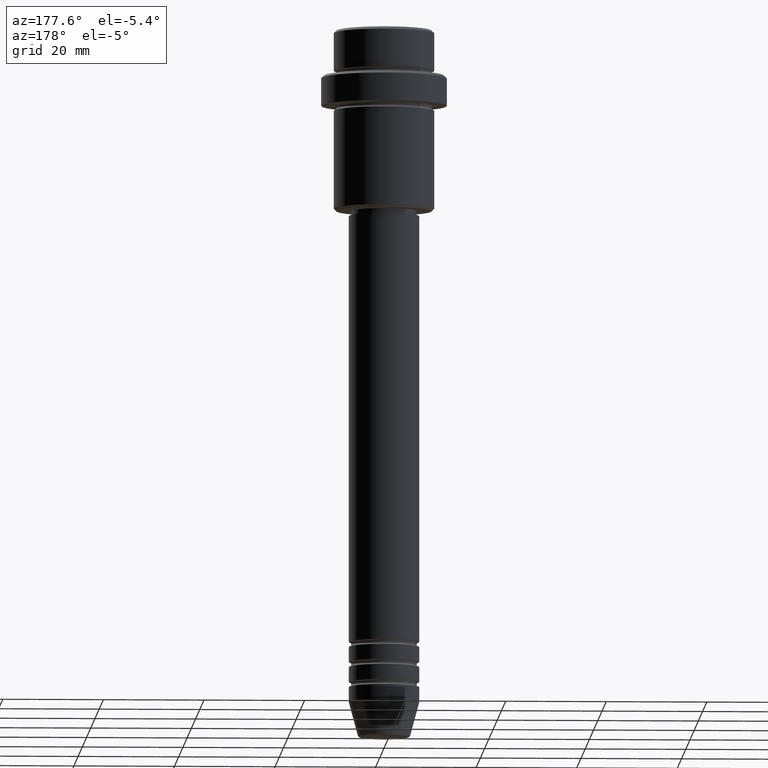
[diagram: clean part render]
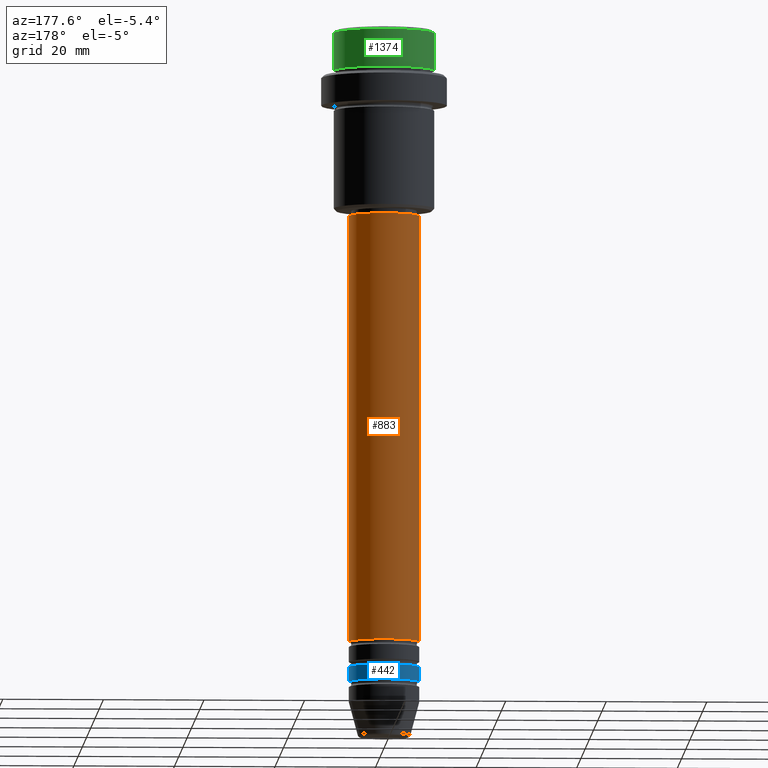
[diagram: same view with three faces highlighted in distinct colors, each labeled with its STEP entity id]
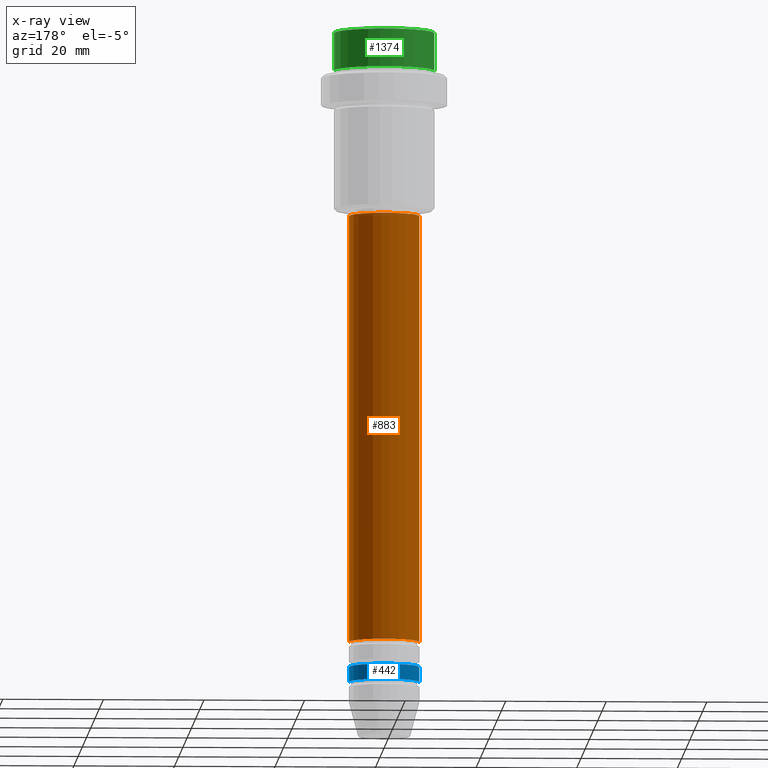
[diagram: x-ray of the same camera — body ghosted, the three highlighted faces saturated]
A machine part, auxiliary view with three faces highlighted in distinct colors.
The next image is the same camera in x-ray (body ghosted, the three faces saturated) — at least one of them is partly hidden behind the body in this view.
Their STEP definitions:

[orange] entity #883 — the highlighted cylindrical surface (edge-blend (fillet) strip) has radius 7 mm, axis along (-0, -0, 1).
#2 = EDGE_CURVE ( 'NONE', #60, #55, #785, .T. ) ;
#7 = LINE ( 'NONE', #463, #515 ) ;
#55 = VERTEX_POINT ( 'NONE', #577 ) ;
#60 = VERTEX_POINT ( 'NONE', #1329 ) ;
#155 = DIRECTION ( 'NONE',  ( -0.000000000000000000, -0.000000000000000000, 1.000000000000000000 ) ) ;
#161 = CARTESIAN_POINT ( 'NONE',  ( 7.000000000000000000, 0.000000000000000000, 0.000000000000000000 ) ) ;
#188 = EDGE_CURVE ( 'NONE', #872, #55, #7, .T. ) ;
#194 = ORIENTED_EDGE ( 'NONE', *, *, #265, .T. ) ;
#239 = EDGE_CURVE ( 'NONE', #306, #60, #486, .T. ) ;
#265 = EDGE_CURVE ( 'NONE', #306, #872, #453, .T. ) ;
#284 = EDGE_LOOP ( 'NONE', ( #194, #596, #1018, #1379 ) ) ;
#286 = DIRECTION ( 'NONE',  ( -0.000000000000000000, -0.000000000000000000, 1.000000000000000000 ) ) ;
#306 = VERTEX_POINT ( 'NONE', #811 ) ;
#386 = AXIS2_PLACEMENT_3D ( 'NONE', #687, #489, #607 ) ;
#453 = CIRCLE ( 'NONE', #540, 7.000000000000000000 ) ;
#463 = CARTESIAN_POINT ( 'NONE',  ( -7.000000000000000000, 8.572527594031473190E-16, 0.000000000000000000 ) ) ;
#486 = LINE ( 'NONE', #161, #676 ) ;
#489 = DIRECTION ( 'NONE',  ( -0.000000000000000000, -0.000000000000000000, 1.000000000000000000 ) ) ;
#502 = CARTESIAN_POINT ( 'NONE',  ( 0.000000000000000000, 0.000000000000000000, -121.9999999999998721 ) ) ;
#515 = VECTOR ( 'NONE', #1324, 1000.000000000000000 ) ;
#538 = AXIS2_PLACEMENT_3D ( 'NONE', #865, #1300, #758 ) ;
#540 = AXIS2_PLACEMENT_3D ( 'NONE', #502, #286, #936 ) ;
#564 = CARTESIAN_POINT ( 'NONE',  ( -7.000000000000000000, 8.572527594031473190E-16, -121.9999999999998721 ) ) ;
#577 = CARTESIAN_POINT ( 'NONE',  ( -7.000000000000000000, 8.572527594031473190E-16, -36.99999999999999289 ) ) ;
#596 = ORIENTED_EDGE ( 'NONE', *, *, #188, .T. ) ;
#607 = DIRECTION ( 'NONE',  ( 1.000000000000000000, 0.000000000000000000, 0.000000000000000000 ) ) ;
#676 = VECTOR ( 'NONE', #155, 1000.000000000000000 ) ;
#687 = CARTESIAN_POINT ( 'NONE',  ( 0.000000000000000000, 0.000000000000000000, 0.000000000000000000 ) ) ;
#758 = DIRECTION ( 'NONE',  ( 1.000000000000000000, 0.000000000000000000, 0.000000000000000000 ) ) ;
#785 = CIRCLE ( 'NONE', #538, 7.000000000000000000 ) ;
#811 = CARTESIAN_POINT ( 'NONE',  ( 7.000000000000000000, 0.000000000000000000, -121.9999999999998721 ) ) ;
#865 = CARTESIAN_POINT ( 'NONE',  ( 0.000000000000000000, 0.000000000000000000, -36.99999999999999289 ) ) ;
#872 = VERTEX_POINT ( 'NONE', #564 ) ;
#883 = ADVANCED_FACE ( 'NONE', ( #1213 ), #1021, .T. ) ;
#936 = DIRECTION ( 'NONE',  ( 1.000000000000000000, 0.000000000000000000, 0.000000000000000000 ) ) ;
#1018 = ORIENTED_EDGE ( 'NONE', *, *, #2, .F. ) ;
#1021 = CYLINDRICAL_SURFACE ( 'NONE', #386, 7.000000000000000000 ) ;
#1213 = FACE_OUTER_BOUND ( 'NONE', #284, .T. ) ;
#1300 = DIRECTION ( 'NONE',  ( -0.000000000000000000, -0.000000000000000000, 1.000000000000000000 ) ) ;
#1324 = DIRECTION ( 'NONE',  ( -0.000000000000000000, -0.000000000000000000, 1.000000000000000000 ) ) ;
#1329 = CARTESIAN_POINT ( 'NONE',  ( 7.000000000000000000, 0.000000000000000000, -36.99999999999999289 ) ) ;
#1379 = ORIENTED_EDGE ( 'NONE', *, *, #239, .F. ) ;

[blue] entity #442 — the highlighted cylindrical surface (edge-blend (fillet) strip) has radius 7 mm, axis along (-0, -0, 1).
#49 = CARTESIAN_POINT ( 'NONE',  ( 0.000000000000000000, 0.000000000000000000, -129.9999999999998579 ) ) ;
#80 = VECTOR ( 'NONE', #1137, 1000.000000000000000 ) ;
#184 = ORIENTED_EDGE ( 'NONE', *, *, #784, .T. ) ;
#185 = CYLINDRICAL_SURFACE ( 'NONE', #1356, 7.000000000000000000 ) ;
#193 = DIRECTION ( 'NONE',  ( -0.000000000000000000, -0.000000000000000000, 1.000000000000000000 ) ) ;
#221 = ORIENTED_EDGE ( 'NONE', *, *, #666, .F. ) ;
#258 = EDGE_CURVE ( 'NONE', #806, #278, #718, .T. ) ;
#278 = VERTEX_POINT ( 'NONE', #616 ) ;
#302 = DIRECTION ( 'NONE',  ( -0.000000000000000000, -0.000000000000000000, 1.000000000000000000 ) ) ;
#321 = ORIENTED_EDGE ( 'NONE', *, *, #258, .T. ) ;
#322 = VECTOR ( 'NONE', #302, 1000.000000000000000 ) ;
#360 = EDGE_CURVE ( 'NONE', #851, #619, #765, .T. ) ;
#419 = DIRECTION ( 'NONE',  ( 1.000000000000000000, 0.000000000000000000, 0.000000000000000000 ) ) ;
#442 = ADVANCED_FACE ( 'NONE', ( #641 ), #185, .T. ) ;
#485 = LINE ( 'NONE', #935, #80 ) ;
#505 = LINE ( 'NONE', #942, #322 ) ;
#523 = DIRECTION ( 'NONE',  ( 1.000000000000000000, 0.000000000000000000, 0.000000000000000000 ) ) ;
#526 = EDGE_LOOP ( 'NONE', ( #321, #184, #708, #221 ) ) ;
#616 = CARTESIAN_POINT ( 'NONE',  ( -7.000000000000000000, 8.572527594031473190E-16, -129.9999999999998579 ) ) ;
#619 = VERTEX_POINT ( 'NONE', #891 ) ;
#641 = FACE_OUTER_BOUND ( 'NONE', #526, .T. ) ;
#666 = EDGE_CURVE ( 'NONE', #806, #851, #485, .T. ) ;
#708 = ORIENTED_EDGE ( 'NONE', *, *, #360, .F. ) ;
#712 = DIRECTION ( 'NONE',  ( -0.000000000000000000, -0.000000000000000000, 1.000000000000000000 ) ) ;
#717 = DIRECTION ( 'NONE',  ( 1.000000000000000000, 0.000000000000000000, 0.000000000000000000 ) ) ;
#718 = CIRCLE ( 'NONE', #1199, 7.000000000000000000 ) ;
#765 = CIRCLE ( 'NONE', #1397, 7.000000000000000000 ) ;
#784 = EDGE_CURVE ( 'NONE', #278, #619, #505, .T. ) ;
#806 = VERTEX_POINT ( 'NONE', #1098 ) ;
#851 = VERTEX_POINT ( 'NONE', #881 ) ;
#864 = CARTESIAN_POINT ( 'NONE',  ( 0.000000000000000000, 0.000000000000000000, -126.9999999999998579 ) ) ;
#881 = CARTESIAN_POINT ( 'NONE',  ( 7.000000000000000000, 0.000000000000000000, -126.9999999999998579 ) ) ;
#891 = CARTESIAN_POINT ( 'NONE',  ( -7.000000000000000000, 8.572527594031473190E-16, -126.9999999999998579 ) ) ;
#935 = CARTESIAN_POINT ( 'NONE',  ( 7.000000000000000000, 0.000000000000000000, 0.000000000000000000 ) ) ;
#942 = CARTESIAN_POINT ( 'NONE',  ( -7.000000000000000000, 8.572527594031473190E-16, 0.000000000000000000 ) ) ;
#949 = DIRECTION ( 'NONE',  ( -0.000000000000000000, -0.000000000000000000, 1.000000000000000000 ) ) ;
#1098 = CARTESIAN_POINT ( 'NONE',  ( 7.000000000000000000, 0.000000000000000000, -129.9999999999998579 ) ) ;
#1137 = DIRECTION ( 'NONE',  ( -0.000000000000000000, -0.000000000000000000, 1.000000000000000000 ) ) ;
#1199 = AXIS2_PLACEMENT_3D ( 'NONE', #49, #712, #717 ) ;
#1356 = AXIS2_PLACEMENT_3D ( 'NONE', #1380, #193, #419 ) ;
#1380 = CARTESIAN_POINT ( 'NONE',  ( 0.000000000000000000, 0.000000000000000000, 0.000000000000000000 ) ) ;
#1397 = AXIS2_PLACEMENT_3D ( 'NONE', #864, #949, #523 ) ;

[green] entity #1374 — the highlighted cylindrical surface (partial cylindrical patch) has radius 10 mm, axis along (-0, -0, 1).
#26 = VERTEX_POINT ( 'NONE', #1305 ) ;
#67 = EDGE_CURVE ( 'NONE', #26, #639, #137, .T. ) ;
#89 = DIRECTION ( 'NONE',  ( 0.000000000000000000, 0.000000000000000000, -1.000000000000000000 ) ) ;
#107 = VECTOR ( 'NONE', #264, 1000.000000000000000 ) ;
#137 = LINE ( 'NONE', #1321, #148 ) ;
#138 = CYLINDRICAL_SURFACE ( 'NONE', #681, 9.999999999999998224 ) ;
#148 = VECTOR ( 'NONE', #782, 1000.000000000000000 ) ;
#176 = CIRCLE ( 'NONE', #431, 9.999999999999998224 ) ;
#177 = LINE ( 'NONE', #615, #107 ) ;
#187 = ORIENTED_EDGE ( 'NONE', *, *, #332, .T. ) ;
#264 = DIRECTION ( 'NONE',  ( -0.000000000000000000, -0.000000000000000000, 1.000000000000000000 ) ) ;
#332 = EDGE_CURVE ( 'NONE', #639, #1383, #969, .T. ) ;
#431 = AXIS2_PLACEMENT_3D ( 'NONE', #1162, #1157, #1178 ) ;
#482 = CARTESIAN_POINT ( 'NONE',  ( 0.000000000000000000, 0.000000000000000000, 0.000000000000000000 ) ) ;
#551 = ORIENTED_EDGE ( 'NONE', *, *, #1079, .T. ) ;
#578 = DIRECTION ( 'NONE',  ( 1.000000000000000000, 0.000000000000000000, 0.000000000000000000 ) ) ;
#615 = CARTESIAN_POINT ( 'NONE',  ( 9.999999999999998224, 0.000000000000000000, 0.000000000000000000 ) ) ;
#625 = ORIENTED_EDGE ( 'NONE', *, *, #67, .T. ) ;
#639 = VERTEX_POINT ( 'NONE', #1033 ) ;
#681 = AXIS2_PLACEMENT_3D ( 'NONE', #482, #1352, #578 ) ;
#684 = EDGE_CURVE ( 'NONE', #1063, #1383, #177, .T. ) ;
#709 = CARTESIAN_POINT ( 'NONE',  ( 9.999999999999998224, 0.000000000000000000, -0.4999999999999831246 ) ) ;
#714 = CARTESIAN_POINT ( 'NONE',  ( 9.999999999999998224, 0.000000000000000000, -7.999999999999998224 ) ) ;
#756 = CARTESIAN_POINT ( 'NONE',  ( 0.000000000000000000, 0.000000000000000000, -0.4999999999999831246 ) ) ;
#782 = DIRECTION ( 'NONE',  ( -0.000000000000000000, -0.000000000000000000, 1.000000000000000000 ) ) ;
#916 = ORIENTED_EDGE ( 'NONE', *, *, #684, .F. ) ;
#920 = FACE_OUTER_BOUND ( 'NONE', #1006, .T. ) ;
#969 = CIRCLE ( 'NONE', #992, 9.999999999999998224 ) ;
#992 = AXIS2_PLACEMENT_3D ( 'NONE', #756, #89, #1390 ) ;
#1006 = EDGE_LOOP ( 'NONE', ( #551, #625, #187, #916 ) ) ;
#1033 = CARTESIAN_POINT ( 'NONE',  ( -9.999999999999998224, 1.224646799147353059E-15, -0.4999999999999831246 ) ) ;
#1063 = VERTEX_POINT ( 'NONE', #714 ) ;
#1079 = EDGE_CURVE ( 'NONE', #1063, #26, #176, .T. ) ;
#1157 = DIRECTION ( 'NONE',  ( -0.000000000000000000, -0.000000000000000000, 1.000000000000000000 ) ) ;
#1162 = CARTESIAN_POINT ( 'NONE',  ( 0.000000000000000000, 0.000000000000000000, -7.999999999999998224 ) ) ;
#1178 = DIRECTION ( 'NONE',  ( 1.000000000000000000, 0.000000000000000000, 0.000000000000000000 ) ) ;
#1305 = CARTESIAN_POINT ( 'NONE',  ( -9.999999999999998224, 1.224646799147353059E-15, -7.999999999999998224 ) ) ;
#1321 = CARTESIAN_POINT ( 'NONE',  ( -9.999999999999998224, 1.224646799147353059E-15, 0.000000000000000000 ) ) ;
#1352 = DIRECTION ( 'NONE',  ( -0.000000000000000000, -0.000000000000000000, 1.000000000000000000 ) ) ;
#1374 = ADVANCED_FACE ( 'NONE', ( #920 ), #138, .T. ) ;
#1383 = VERTEX_POINT ( 'NONE', #709 ) ;
#1390 = DIRECTION ( 'NONE',  ( 1.000000000000000000, 0.000000000000000000, 0.000000000000000000 ) ) ;